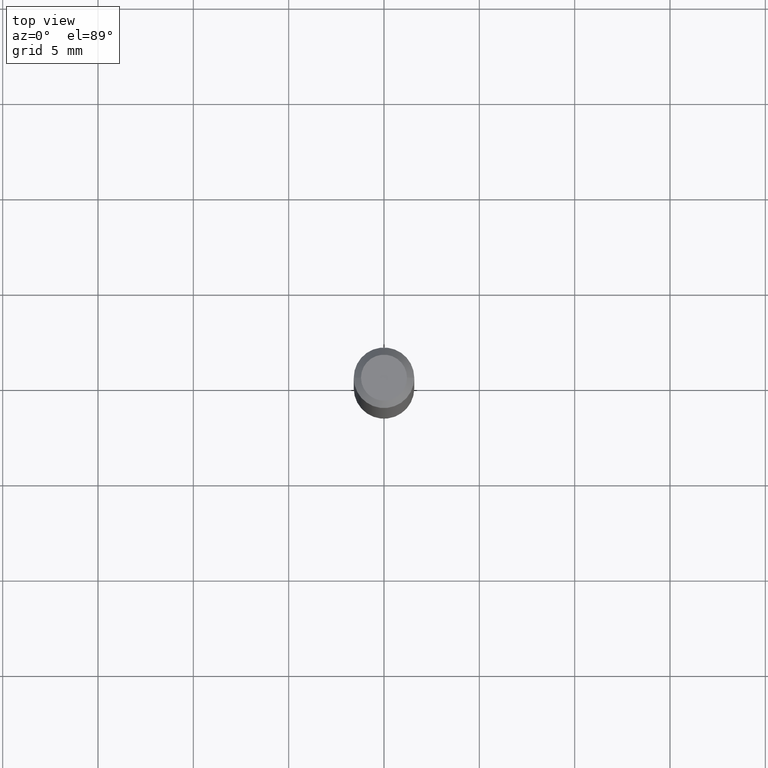
[diagram: clean part render]
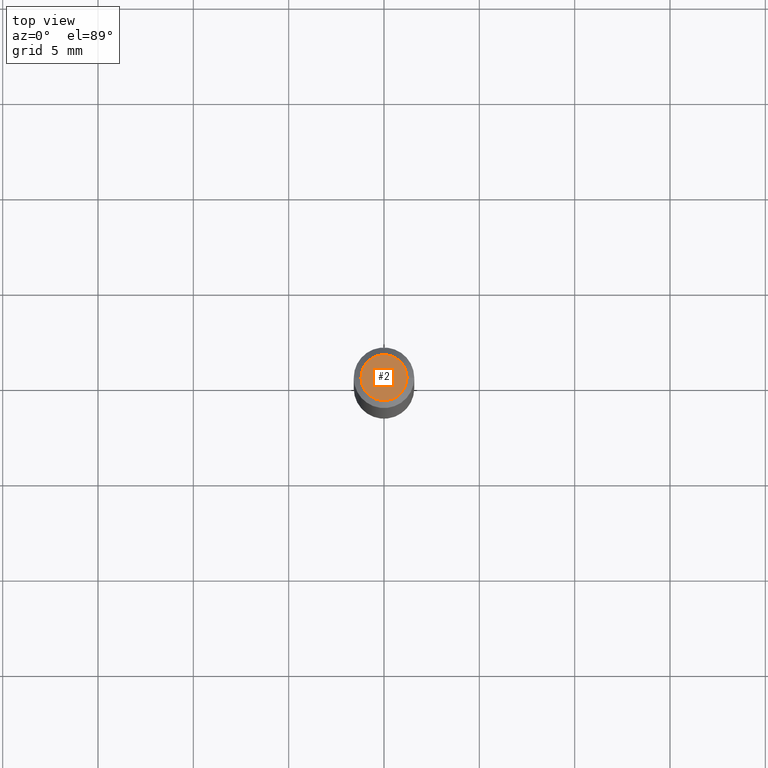
[diagram: same view with one face highlighted and labeled with its STEP entity id]
A machine part, top view. The second image highlights one B-rep face of the part: STEP entity #2.
In plain terms, the highlighted planar face has unit normal (0, -0, -1).
Its self-contained STEP definition (entity closure, byte-faithful):
#2 = ADVANCED_FACE ( 'NONE', ( #147 ), #47, .F. ) ;
#47 = PLANE ( 'NONE',  #461 ) ;
#61 = DIRECTION ( 'NONE',  ( -2.445468806185136597E-29, 3.491481338843145583E-15, 1.000000000000000000 ) ) ;
#80 = VERTEX_POINT ( 'NONE', #212 ) ;
#87 = AXIS2_PLACEMENT_3D ( 'NONE', #100, #61, #303 ) ;
#97 = VERTEX_POINT ( 'NONE', #160 ) ;
#100 = CARTESIAN_POINT ( 'NONE',  ( -3.223020679335594837E-45, 4.601619341103081537E-31, 1.317956160873471783E-16 ) ) ;
#138 = EDGE_LOOP ( 'NONE', ( #422, #308 ) ) ;
#147 = FACE_OUTER_BOUND ( 'NONE', #138, .T. ) ;
#160 = CARTESIAN_POINT ( 'NONE',  ( 0.04749999999999999362, -4.035134999187576158E-16, 1.317956160873497667E-16 ) ) ;
#212 = CARTESIAN_POINT ( 'NONE',  ( -0.04749999999999999362, 3.578768372314212971E-16, 1.317956160873447624E-16 ) ) ;
#234 = AXIS2_PLACEMENT_3D ( 'NONE', #281, #338, #346 ) ;
#249 = DIRECTION ( 'NONE',  ( -1.000000000000000000, 6.982962677686265922E-15, -4.876176775795935793E-29 ) ) ;
#281 = CARTESIAN_POINT ( 'NONE',  ( -3.223020679335594837E-45, 4.601619341103081537E-31, 1.317956160873471783E-16 ) ) ;
#287 = CARTESIAN_POINT ( 'NONE',  ( 3.316907271900976096E-16, 0.04749999999999999362, -9.994755555137580731E-17 ) ) ;
#298 = EDGE_CURVE ( 'NONE', #80, #97, #381, .T. ) ;
#303 = DIRECTION ( 'NONE',  ( 1.000000000000000000, -6.982962677686267499E-15, 4.884662768193073002E-29 ) ) ;
#308 = ORIENTED_EDGE ( 'NONE', *, *, #326, .T. ) ;
#326 = EDGE_CURVE ( 'NONE', #97, #80, #438, .T. ) ;
#338 = DIRECTION ( 'NONE',  ( -2.445468806185136597E-29, 3.491481338843145583E-15, 1.000000000000000000 ) ) ;
#346 = DIRECTION ( 'NONE',  ( 1.000000000000000000, -6.982962677686267499E-15, 4.884662768193073002E-29 ) ) ;
#381 = CIRCLE ( 'NONE', #87, 0.04749999999999999362 ) ;
#396 = DIRECTION ( 'NONE',  ( 2.438088387897960049E-29, -3.491481338843145188E-15, -1.000000000000000000 ) ) ;
#422 = ORIENTED_EDGE ( 'NONE', *, *, #298, .T. ) ;
#438 = CIRCLE ( 'NONE', #234, 0.04749999999999999362 ) ;
#461 = AXIS2_PLACEMENT_3D ( 'NONE', #287, #396, #249 ) ;